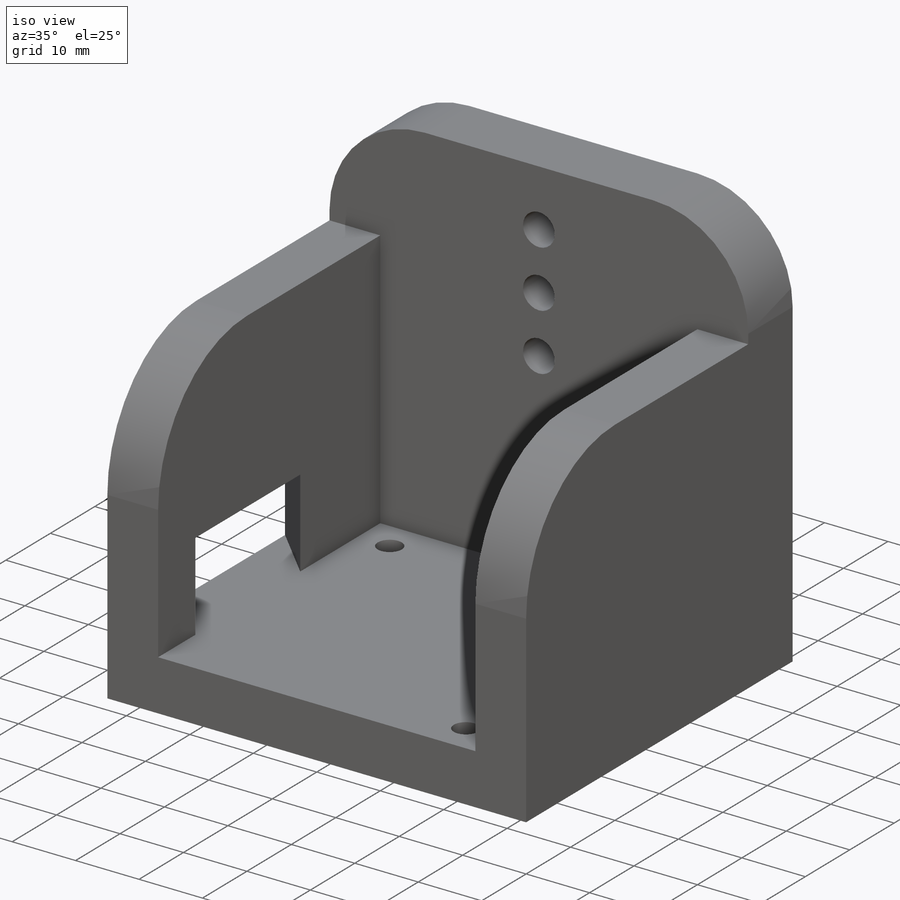
[diagram: iso view]
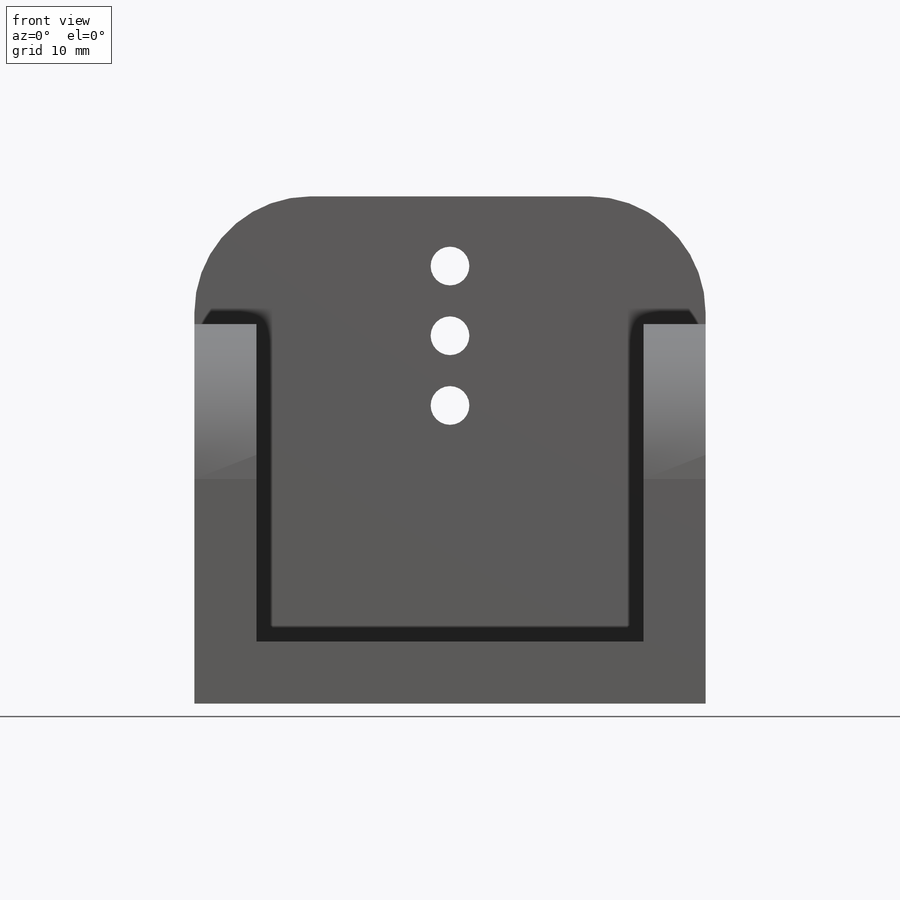
[diagram: front view]
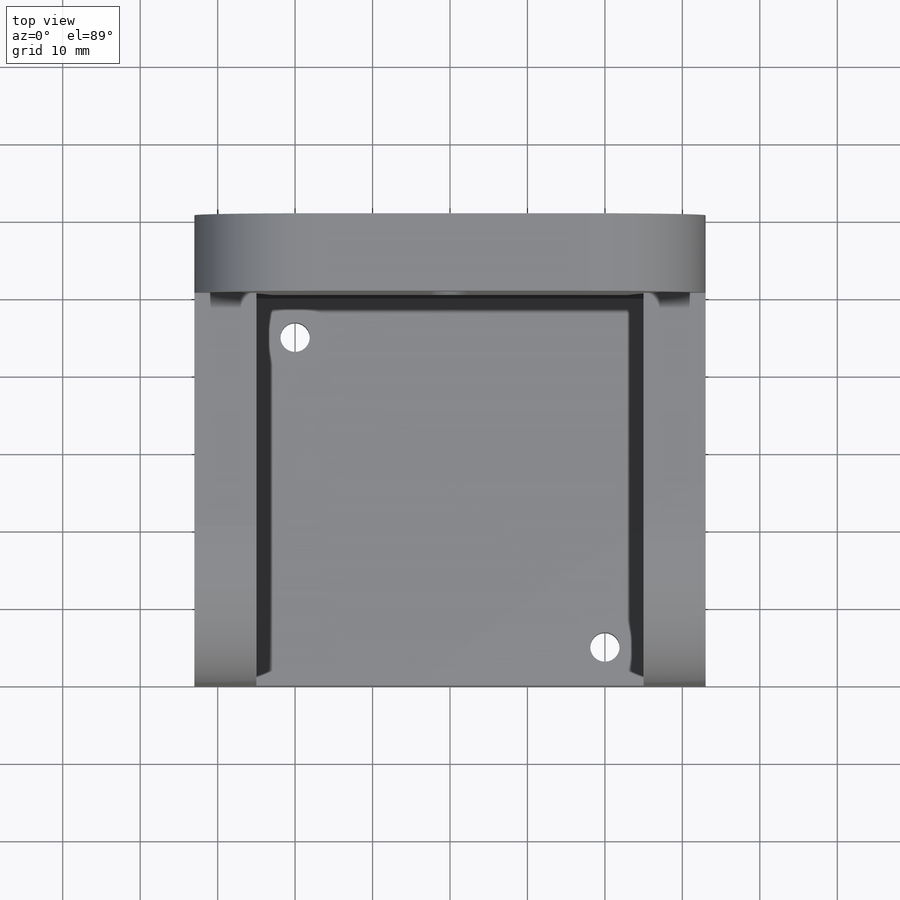
[diagram: top view]
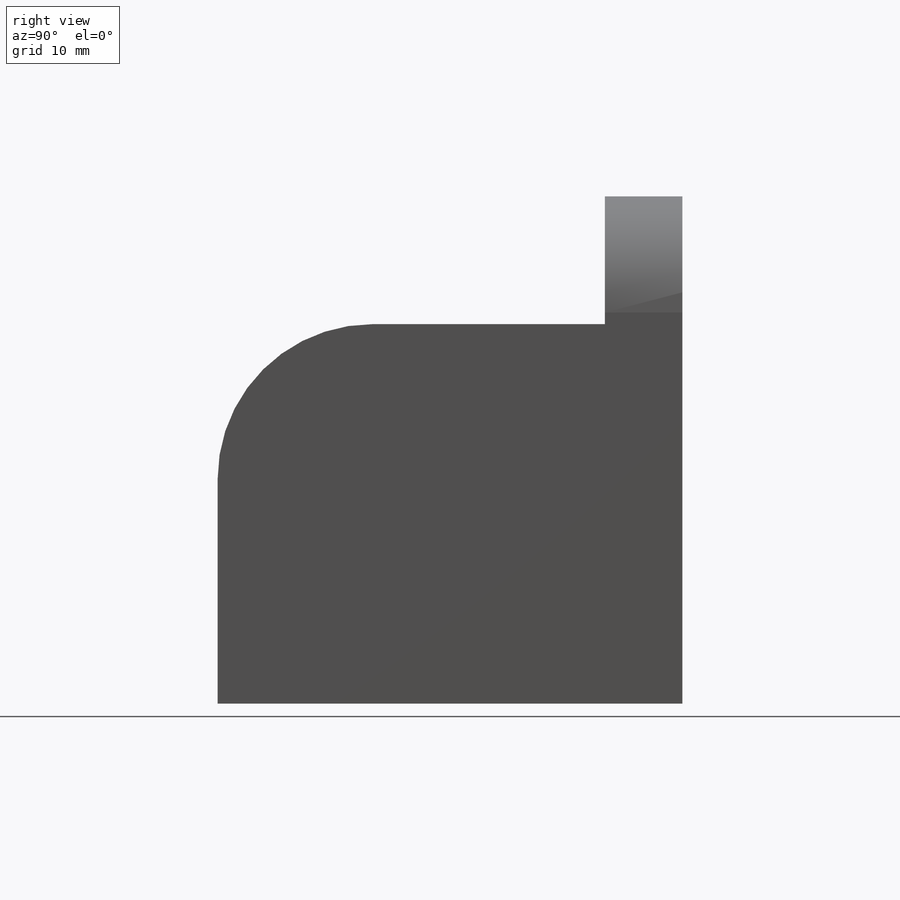
[diagram: right view]
SOLIDWORKS PART (.sldprt)
format: sldprt  version: not decoded by parser v0  size: 354,304 bytes
history: native  units: mm
features: sketch x6, cut_extrude x3, extrude x2, fillet x2, material x1, chamfer x1 (+12 scaffold rows collapsed)
feature tree (27):
  scaffold x12  (default folders/planes/origin — collapsed)
  material  "Material <not specified>"
  sketch  "Sketch1"  dims[c1.D7=~2.193567mm c1.D9=4.0mm c1.D10=4.0mm c1.D11=4.0mm c1.D3=41.0mm c1.D12=~128.212089mm c1.D5=~52.140085mm c1.D1=25.0mm c1.D2=25.0mm c2.D3=41.0mm c2.D4=39.5mm c2.D5=39.5mm c2.D6=49.0mm c2.D7=5.0mm c2.D8=5.0mm c3.D7=6.0mm c3.D8=6.0mm c3.D2=20.0mm c3.D4=8.0mm c3.D5=8.0mm c3.D12=8.0mm c4.D2=57.5mm]
  extrude  "Boss-Extrude2"  Depth=10mm
  extrude  "Boss-Extrude3"  [1 undecoded]
  sketch  "Sketch1<8>"  dims[D1=60.0mm]
  sketch  "Sketch2"  dims[c1.D1=~6.847634mm c1.D3=~40.593822mm c2.D3=13.7deg c2.D5=~40.595971mm c3.D3=49.0mm c3.D2=50.0mm c3.D1=8.0mm c4.D2=13.6mm c4.D3=6.9mm c4.D4=7.8mm c4.D5=5.0mm]
  fillet  "Fillet3"  Radius=20mm
  sketch  "Sketch3"  dims[D2=~1.89822mm D1=5.0mm]
  cut_extrude  "Cut-Extrude2"  [1 undecoded]
  sketch  "Sketch6"  dims[D1=8.0mm D2=6.9mm D3=6.9mm D4=13.6mm D5=8.0mm D6=40.0mm]
  cut_extrude  "Cut-Extrude3"  [1 undecoded]
  chamfer  "Chamfer1"  Distance=10mm Angle=45deg
  sketch  "Sketch8"  dims[D4=~2.425918mm D1=39.5mm D2=9.0mm D3=9.0mm]
  cut_extrude  "Cut-Extrude4"  Depth=10mm
  fillet  "Fillet4"  Radius=15mm
decode coverage: 11 of 14 modeling features carry decoded parameters
note: ~ marks probable driven/reference dimensions
note: 3 parameter values undecoded
summary: no parameter record found for 3 features
note: suppression state not decoded; provenance and decode notes live in map.json
